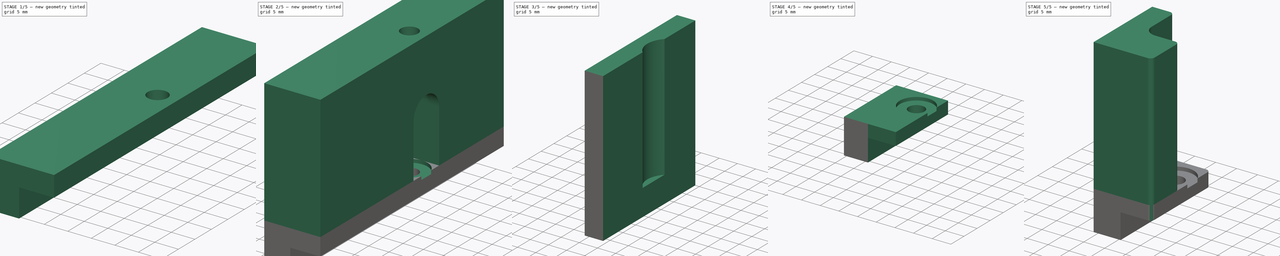
[diagram: build sequence overview — one tinted view per stage of 5, left to right]
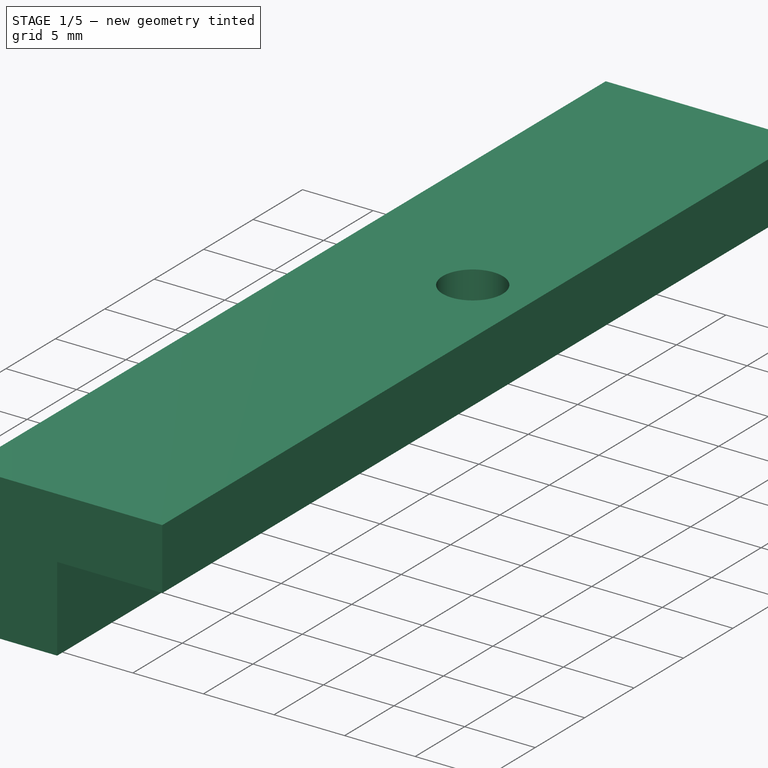
[diagram: stage 1 of 5 — iso view after this stage's code; geometry added in this stage tinted green]
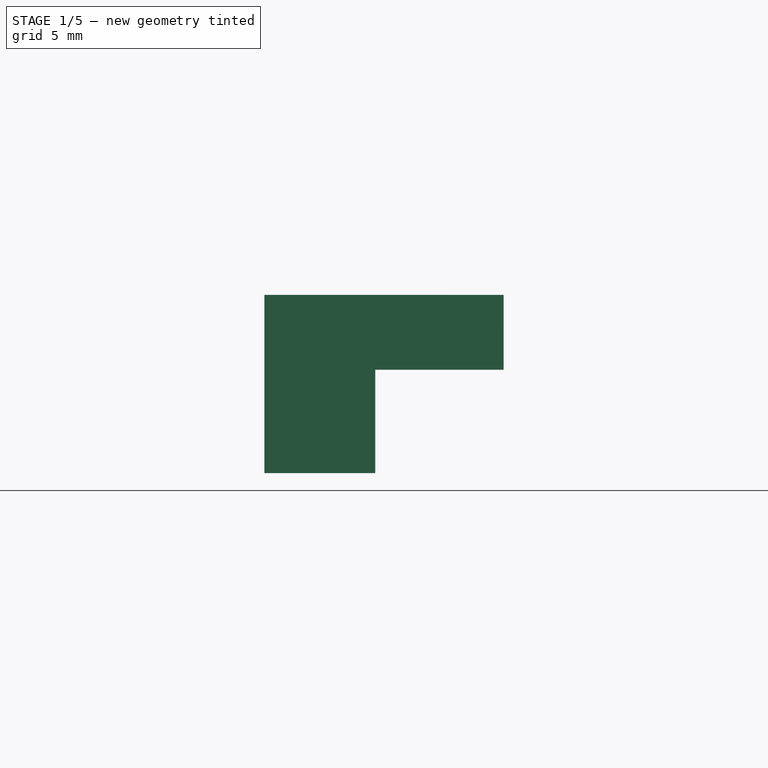
[diagram: stage 1 of 5 — front view after this stage's code; geometry added in this stage tinted green]
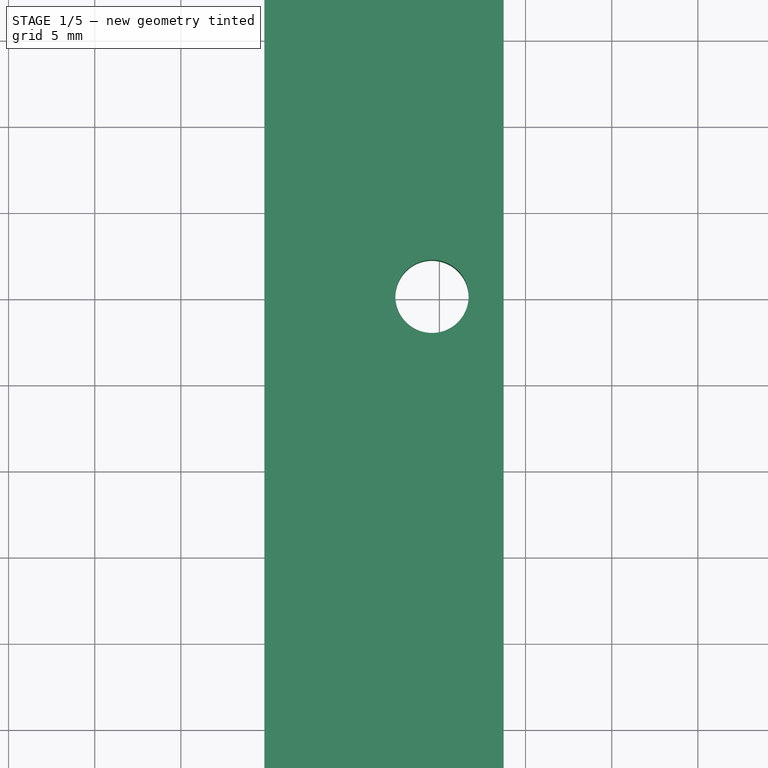
[diagram: stage 1 of 5 — top view after this stage's code; geometry added in this stage tinted green]
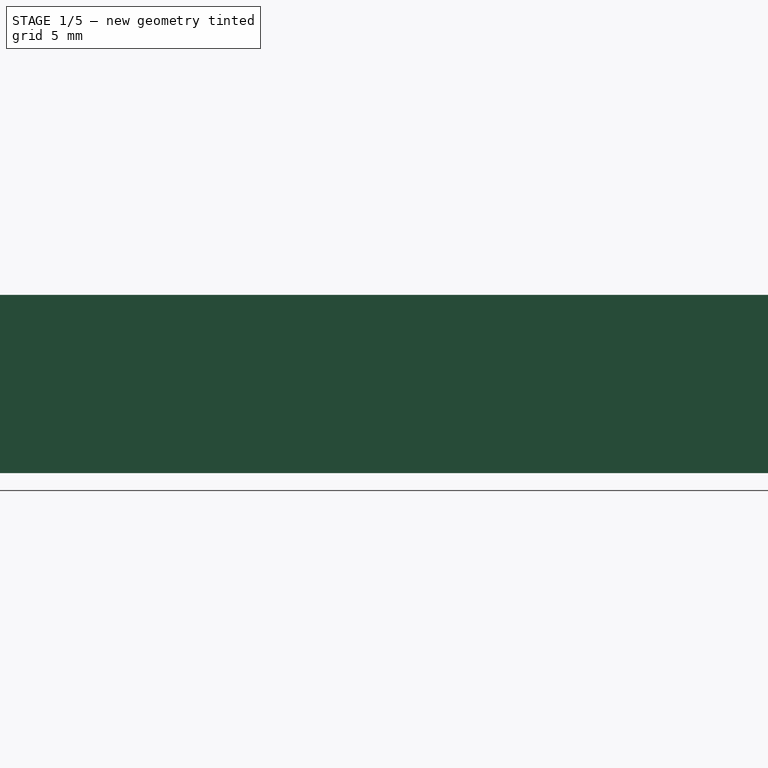
[diagram: stage 1 of 5 — right view after this stage's code; geometry added in this stage tinted green]
FCSTD DOCUMENT  (FreeCAD 0.21R33771 (Git))
Label: spacer-3
License: All rights reserved
LicenseURL: http://en.wikipedia.org/wiki/All_rights_reserved
objects: PartDesign::Pad×11, Sketcher::SketchObject×9, PartDesign::Fillet×4, PartDesign::SubShapeBinder×3, PartDesign::Body×3, PartDesign::Pocket×2, PartDesign::Plane×1
note: 50 computed .brp shape members not serialized (recipe doc carries the construction recipe); baked Part::Feature solids carry a one-line shape summary decoded from their .brp

FEATURE [Sketcher::SketchObject] Sketch
  FullyConstrained = true
  MapMode = 5
  Support = -> [XY_Plane]
  sketch-geometry (8):
    g0: LineSegment StartX=0 StartY=0 StartZ=0 EndX=0 EndY=5 EndZ=0
    g1: LineSegment StartX=0 StartY=5 StartZ=0 EndX=-0.43 EndY=5 EndZ=0
    g2: Circle CenterX=-0.43 CenterY=5 CenterZ=0 NormalX=0 NormalY=0 NormalZ=1 AngleXU=0 Radius=2.125
    g3: LineSegment StartX=3.725 StartY=-32.34 StartZ=0 EndX=3.725 EndY=32.34 EndZ=0
    g4: LineSegment StartX=3.725 StartY=32.34 StartZ=0 EndX=-3.725 EndY=32.34 EndZ=0
    g5: LineSegment StartX=-3.725 StartY=32.34 StartZ=0 EndX=-3.725 EndY=-32.34 EndZ=0
    g6: LineSegment StartX=-3.725 StartY=-32.34 StartZ=0 EndX=3.725 EndY=-32.34 EndZ=0
    g7: GeomPoint X=0 Y=0 Z=0
  constraints (20):
    c: Coincident(g0,g-1)
    c: PointOnObject(g0,g-2)
    c: Coincident(g1,g0)
    c: Horizontal(g1)
    c: Distance(g0) = 5
    c: Distance(g1) = 0.43
    c: Coincident(g2,g1)
    c: Diameter(g2) = 4.25
    c: Coincident(g3,g4)
    c: Coincident(g4,g5)
    c: Coincident(g5,g6)
    c: Coincident(g6,g3)
    c: Horizontal(g4)
    c: Horizontal(g6)
    c: Vertical(g3)
    c: Vertical(g5)
    c: Symmetric(g4,g3,g7)
    c: Coincident(g7,g0)
    c: Distance(g6) = 7.45
    c: Distance(g3) = 64.68
FEATURE [PartDesign::Pad] Pad
  Direction = (0,0,1)
  Length = 4.35
  Length2 = 10
  Profile = -> Sketch
  ReferenceAxis = -> Sketch [N_Axis]
  Type = 0
FEATURE [PartDesign::Pad] Pad001
  BaseFeature = -> Pad
  Direction = (-1,0,0)
  Length = 6.43
  Length2 = 10
  Profile = -> Pad [Face3]
  Type = 0
FEATURE [PartDesign::Pad] Pad002
  BaseFeature = -> Pad001
  Direction = (0,0,-1)
  Length = 6
  Length2 = 10
  Profile = -> Pad001 [Face8]
  Type = 0
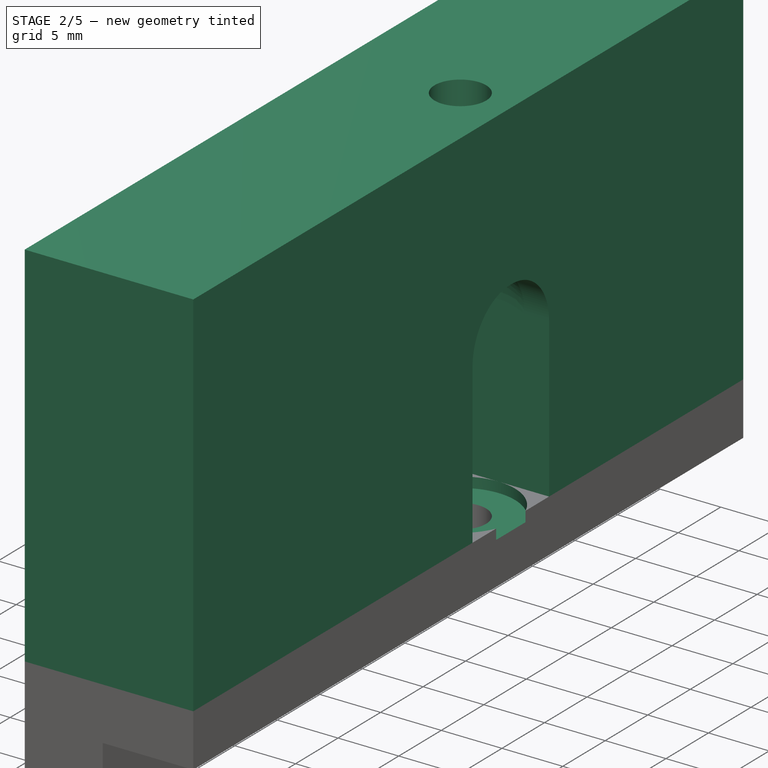
[diagram: stage 2 of 5 — iso view after this stage's code; geometry added in this stage tinted green]
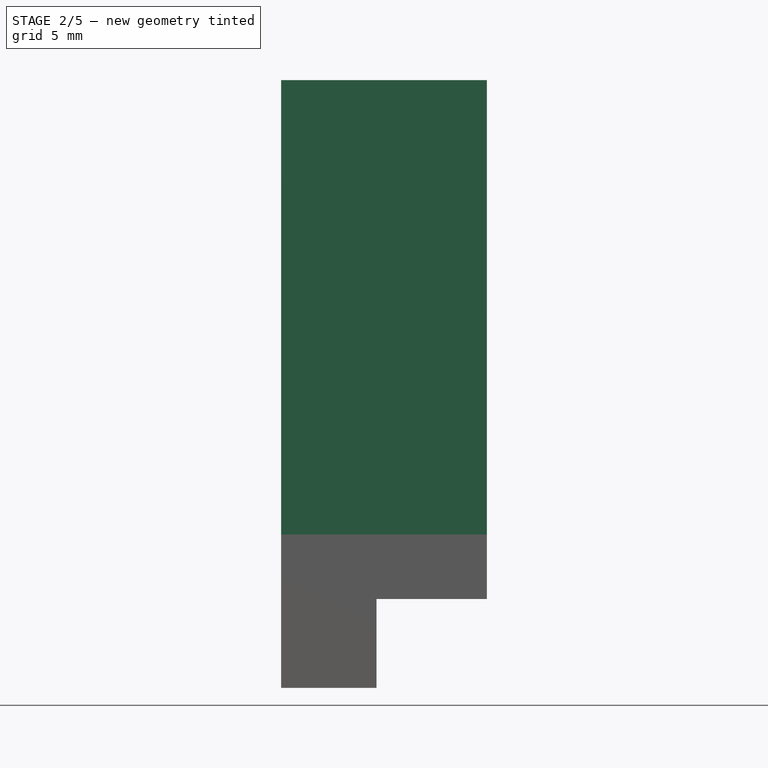
[diagram: stage 2 of 5 — front view after this stage's code; geometry added in this stage tinted green]
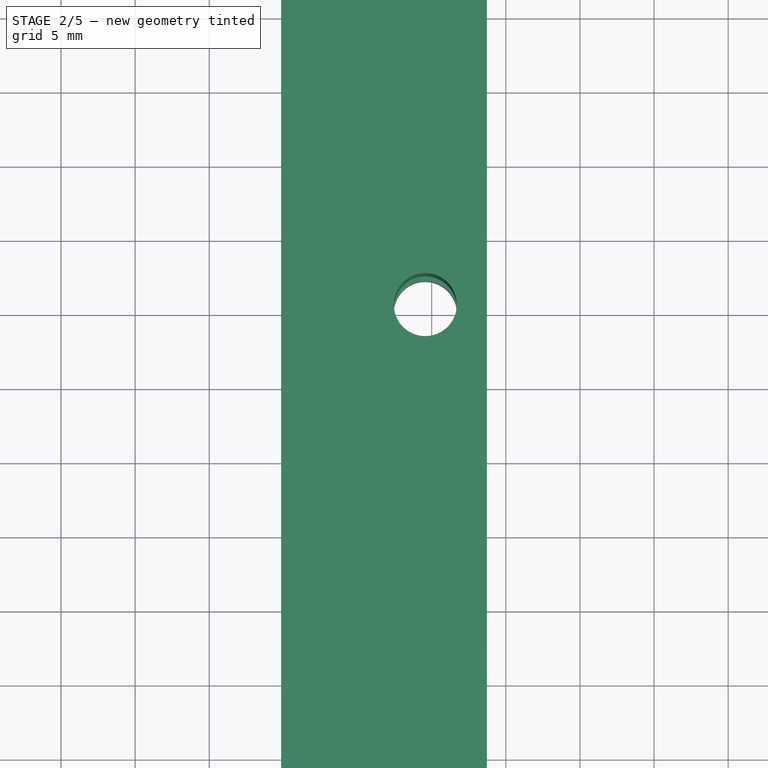
[diagram: stage 2 of 5 — top view after this stage's code; geometry added in this stage tinted green]
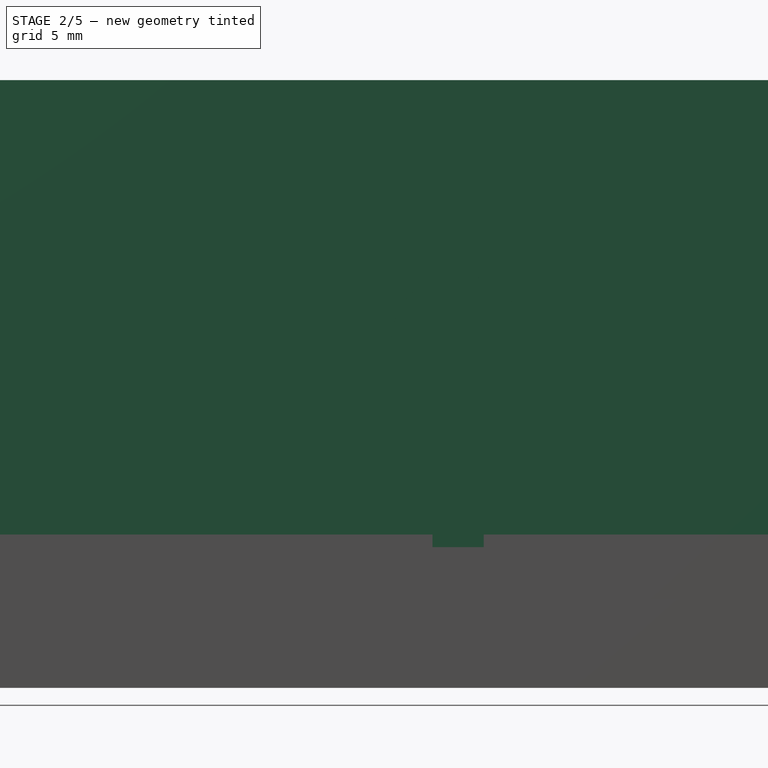
[diagram: stage 2 of 5 — right view after this stage's code; geometry added in this stage tinted green]
FEATURE [Sketcher::SketchObject] Sketch001
  ExternalGeometry = -> [Pad002]
  FullyConstrained = true
  MapMode = 5
  Placement = pos=(0,0,4.35) rot=(0,0,1;0rad)
  Support = -> [Pad002]
  sketch-geometry (6):
    g0: ArcOfCircle CenterX=-0.43 CenterY=5 CenterZ=0 NormalX=0 NormalY=0 NormalZ=1 AngleXU=0 Radius=4.5 StartAngle=3.71715 EndAngle=5.88906
    g1: ArcOfCircle CenterX=-0.43 CenterY=5 CenterZ=0 NormalX=0 NormalY=0 NormalZ=1 AngleXU=0 Radius=4.5 StartAngle=0.394124 EndAngle=2.56603
    g2: LineSegment StartX=-4.205 StartY=7.44936 StartZ=0 EndX=-4.205 EndY=2.55064 EndZ=0
    g3: LineSegment StartX=-2.555 StartY=5 StartZ=0 EndX=-4.205 EndY=5 EndZ=0
    g4: LineSegment StartX=3.725 StartY=6.728 StartZ=0 EndX=3.725 EndY=3.272 EndZ=0
    g5: LineSegment StartX=1.695 StartY=5 StartZ=0 EndX=3.725 EndY=5 EndZ=0
  constraints (20):
    c: Coincident(g0,g-3)
    c: Coincident(g1,g0)
    c: Diameter(g1) = 9
    c: Equal(g1,g0)
    c: Coincident(g2,g1)
    c: Coincident(g2,g0)
    c: Vertical(g2)
    c: PointOnObject(g3,g-3)
    c: PointOnObject(g3,g2)
    c: Horizontal(g3)
    c: Horizontal(g3,g0)
    c: Distance(g3) = 1.65
    c: PointOnObject(g0,g-4)
    c: PointOnObject(g1,g-4)
    c: Coincident(g4,g1)
    c: Coincident(g4,g0)
    c: PointOnObject(g5,g-3)
    c: PointOnObject(g5,g4)
    c: Horizontal(g5)
    c: Horizontal(g0,g5)
FEATURE [PartDesign::Pocket] Pocket
  BaseFeature = -> Pad002
  Direction = (0,0,-1)
  Length = 0.85
  Length2 = 5
  Profile = -> Sketch001
  ReferenceAxis = -> Sketch001 [N_Axis]
  Type = 0
FEATURE [Sketcher::SketchObject] Sketch002
  ExternalGeometry = -> [Pocket]
  FullyConstrained = true
  MapMode = 5
  Placement = pos=(0,0,4.35) rot=(0,0,1;0rad)
  Support = -> [Pocket]
  sketch-geometry (10):
    g0: LineSegment StartX=-10.155 StartY=-32.34 StartZ=0 EndX=-10.155 EndY=32.34 EndZ=0
    g1: LineSegment StartX=-10.155 StartY=32.34 StartZ=0 EndX=3.725 EndY=32.34 EndZ=0
    g2: LineSegment StartX=3.725 StartY=32.34 StartZ=0 EndX=3.725 EndY=9.5 EndZ=0
    g3: LineSegment StartX=3.725 StartY=9.5 StartZ=0 EndX=-4.205 EndY=9.5 EndZ=0
    g4: LineSegment StartX=-4.205 StartY=9.5 StartZ=0 EndX=-4.205 EndY=0.5 EndZ=0
    g5: LineSegment StartX=-4.205 StartY=0.5 StartZ=0 EndX=3.725 EndY=0.5 EndZ=0
    g6: LineSegment StartX=3.725 StartY=0.5 StartZ=0 EndX=3.725 EndY=-32.34 EndZ=0
    g7: GeomPoint X=-0.43 Y=0.5 Z=0
    g8: GeomPoint X=-0.43 Y=9.5 Z=0
    g9: LineSegment StartX=3.725 StartY=-32.34 StartZ=0 EndX=-10.155 EndY=-32.34 EndZ=0
  constraints (24):
    c: Coincident(g0,g-6)
    c: Coincident(g0,g-9)
    c: Coincident(g1,g0)
    c: Coincident(g1,g-7)
    c: Coincident(g2,g1)
    c: Vertical(g2)
    c: Coincident(g3,g2)
    c: Horizontal(g3)
    c: Coincident(g4,g3)
    c: Vertical(g4)
    c: Coincident(g5,g4)
    c: Horizontal(g5)
    c: Coincident(g6,g5)
    c: Coincident(g6,g-8)
    c: Vertical(g6)
    c: Vertical(g3,g-5)
    c: PointOnObject(g7,g5)
    c: PointOnObject(g8,g3)
    c: PointOnObject(g8,g-4)
    c: PointOnObject(g7,g-3)
    c: Vertical(g7,g-4)
    c: Vertical(g8,g-4)
    c: Coincident(g9,g6)
    c: Coincident(g9,g0)
FEATURE [PartDesign::Pad] Pad003
  BaseFeature = -> Pocket
  Direction = (0,0,1)
  Length = 17.5
  Length2 = 10
  Profile = -> Sketch002
  ReferenceAxis = -> Sketch002 [N_Axis]
  Type = 0
FEATURE [Sketcher::SketchObject] Sketch003
  ExternalGeometry = -> [Pad003]
  FullyConstrained = true
  MapMode = 5
  Placement = pos=(0,0,21.85) rot=(0,0,1;0rad)
  Support = -> [Pad003]
  sketch-geometry (5):
    g0: LineSegment StartX=-10.155 StartY=-32.34 StartZ=0 EndX=-10.155 EndY=32.34 EndZ=0
    g1: LineSegment StartX=-10.155 StartY=32.34 StartZ=0 EndX=3.725 EndY=32.34 EndZ=0
    g2: LineSegment StartX=3.725 StartY=32.34 StartZ=0 EndX=3.725 EndY=-32.34 EndZ=0
    g3: LineSegment StartX=3.725 StartY=-32.34 StartZ=0 EndX=-10.155 EndY=-32.34 EndZ=0
    g4: Circle CenterX=-0.43 CenterY=5 CenterZ=0 NormalX=0 NormalY=0 NormalZ=1 AngleXU=0 Radius=2.125
  constraints (10):
    c: Coincident(g0,g-5)
    c: Coincident(g0,g-4)
    c: Coincident(g1,g0)
    c: Coincident(g1,g-4)
    c: Coincident(g2,g1)
    c: Coincident(g2,g-5)
    c: Coincident(g3,g2)
    c: Coincident(g3,g0)
    c: Coincident(g4,g-3)
    c: Equal(g-3,g4)
FEATURE [PartDesign::Pad] Pad004
  BaseFeature = -> Pad003
  Direction = (0,0,1)
  Length = 13.15
  Length2 = 10
  Profile = -> Sketch003
  ReferenceAxis = -> Sketch003 [N_Axis]
  Type = 0
FEATURE [PartDesign::Fillet] Fillet
  Base = -> Pad004 [Edge64,Edge51]
  BaseFeature = -> Pad004
  Radius = 4.4
  SupportTransform = false
  UseAllEdges = false
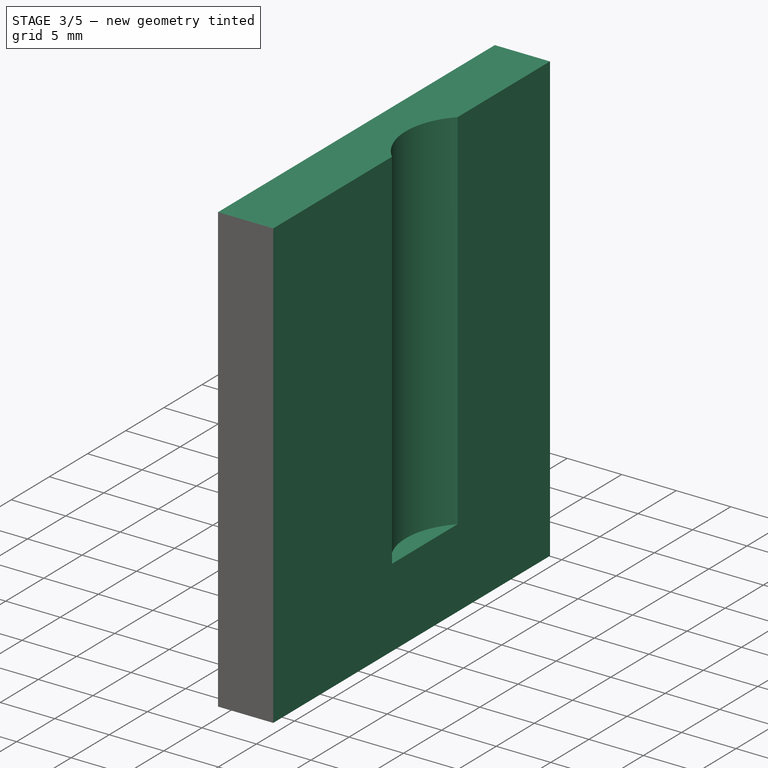
[diagram: stage 3 of 5 — iso view after this stage's code; geometry added in this stage tinted green]
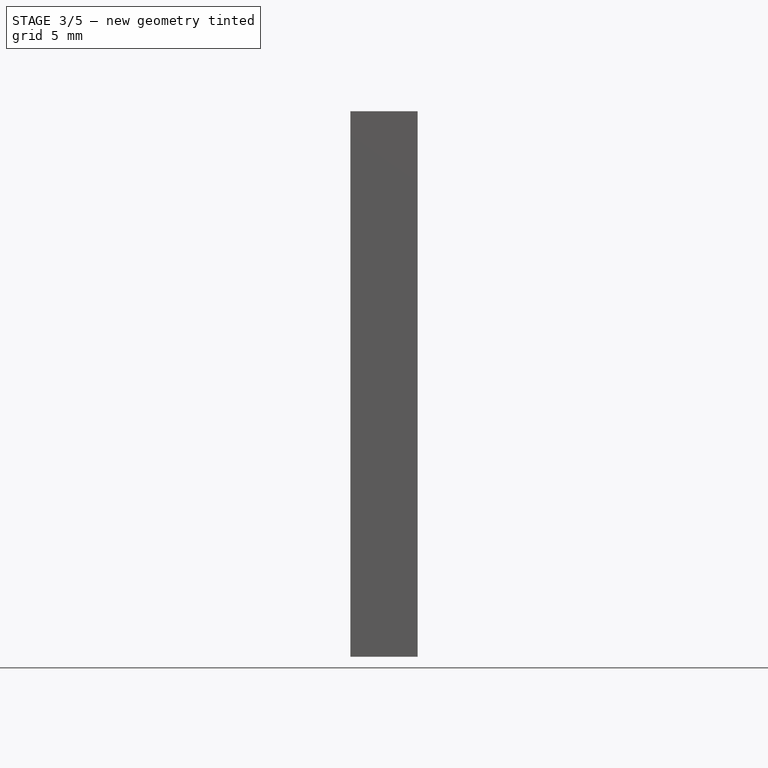
[diagram: stage 3 of 5 — front view after this stage's code; geometry added in this stage tinted green]
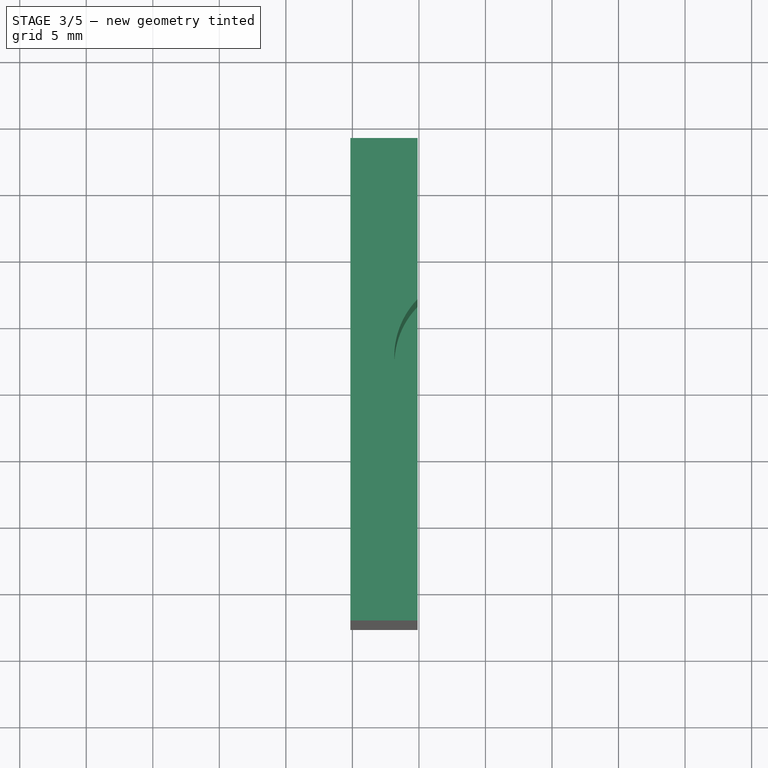
[diagram: stage 3 of 5 — top view after this stage's code; geometry added in this stage tinted green]
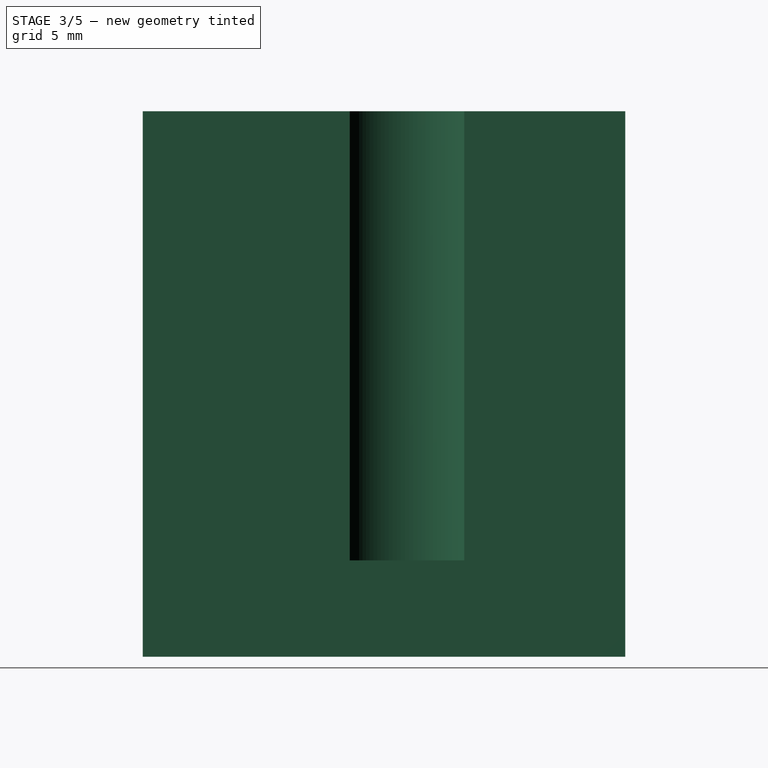
[diagram: stage 3 of 5 — right view after this stage's code; geometry added in this stage tinted green]
FEATURE [PartDesign::SubShapeBinder] Binder001
  BindCopyOnChange = 0
  BindMode = 0
  ClaimChildren = false
  Context = -> Body001 [Binder001.]
  Fuse = false
  MakeFace = true
  OffsetFill = false
  OffsetIntersection = false
  OffsetJoinType = 0
  OffsetOpenResult = false
  PartialLoad = false
  Relative = true
  Support = -> [Body[Pad004.Edge71]]
  _Version = 2
FEATURE [PartDesign::Plane] DatumPlane
  AttachmentOffset = pos=(0,0,0) rot=(-1,0,0;1.5708rad)
  Length = 107.282
  MapMode = 7
  Placement = pos=(-3.725,32.34,-6) rot=(0,0,1;1.5708rad)
  ResizeMode = 0
  Support = -> [Binder001]
  Width = 63.6821
FEATURE [Sketcher::SketchObject] Sketch004
  ExternalGeometry = -> [Binder001]
  FullyConstrained = true
  MapMode = 5
  Placement = pos=(-3.725,32.34,-6) rot=(0,0,1;1.5708rad)
  Support = -> [DatumPlane]
  sketch-geometry (4):
    g0: LineSegment StartX=0 StartY=6.43 StartZ=0 EndX=36.26 EndY=6.43 EndZ=0
    g1: LineSegment StartX=36.26 StartY=6.43 StartZ=0 EndX=36.26 EndY=1.37 EndZ=0
    g2: LineSegment StartX=36.26 StartY=1.37 StartZ=0 EndX=0 EndY=1.37 EndZ=0
    g3: LineSegment StartX=0 StartY=1.37 StartZ=0 EndX=0 EndY=6.43 EndZ=0
  constraints (11):
    c: Coincident(g0,g1)
    c: Coincident(g1,g2)
    c: Coincident(g2,g3)
    c: Coincident(g3,g0)
    c: Horizontal(g0)
    c: Horizontal(g2)
    c: Vertical(g1)
    c: Vertical(g3)
    c: Coincident(g0,g-3)
    c: Distance(g3) = 5.06
    c: Distance(g0) = 36.26
FEATURE [PartDesign::Pad] Pad005
  Direction = (0,0,1)
  Length = 7.25
  Length2 = 10
  Placement = pos=(-3.725,32.34,-6) rot=(0,0,1;1.5708rad)
  Profile = -> Sketch004
  ReferenceAxis = -> Sketch004 [N_Axis]
  Type = 0
FEATURE [Sketcher::SketchObject] Sketch005
  ExternalGeometry = -> [Pad005]
  FullyConstrained = true
  MapMode = 5
  Placement = pos=(-3.725,32.34,1.25) rot=(0,0,1;1.5708rad)
  Support = -> [Pad005]
  sketch-geometry (10):
    g0: LineSegment StartX=0 StartY=1.37 StartZ=0 EndX=0 EndY=-0.03 EndZ=0
    g1: LineSegment StartX=0 StartY=-0.03 StartZ=0 EndX=19.86 EndY=-0.03 EndZ=0
    g2: ArcOfCircle CenterX=19.86 CenterY=-3.03786 CenterZ=0 NormalX=0 NormalY=0 NormalZ=1 AngleXU=0 Radius=6.15786 StartAngle=0.797784 EndAngle=2.34381
    g3: LineSegment StartX=19.86 StartY=-0.03 StartZ=0 EndX=19.86 EndY=3.12 EndZ=0
    g4: LineSegment StartX=15.56 StartY=1.37 StartZ=0 EndX=24.16 EndY=1.37 EndZ=0
    g5: LineSegment StartX=15.56 StartY=1.37 StartZ=0 EndX=0 EndY=1.37 EndZ=0
    g6: LineSegment StartX=0 StartY=1.37 StartZ=0 EndX=0 EndY=6.43 EndZ=0
    g7: LineSegment StartX=0 StartY=6.43 StartZ=0 EndX=36.26 EndY=6.43 EndZ=0
    g8: LineSegment StartX=36.26 StartY=6.43 StartZ=0 EndX=36.26 EndY=1.37 EndZ=0
    g9: LineSegment StartX=36.26 StartY=1.37 StartZ=0 EndX=24.16 EndY=1.37 EndZ=0
  constraints (26):
    c: Vertical(g0)
    c: Distance(g0) = 1.4
    c: Coincident(g0,g-3)
    c: Coincident(g1,g0)
    c: Horizontal(g1)
    c: Distance(g1) = 19.86
    c: Vertical(g1,g2)
    c: PointOnObject(g2,g-3)
    c: PointOnObject(g2,g-3)
    c: Coincident(g3,g1)
    c: PointOnObject(g3,g2)
    c: Vertical(g3)
    c: Distance(g3) = 3.15
    c: Coincident(g4,g2)
    c: Coincident(g4,g2)
    c: Distance(g4) = 8.6
    c: Coincident(g5,g2)
    c: Coincident(g5,g0)
    c: Coincident(g6,g5)
    c: Coincident(g6,g-4)
    c: Coincident(g7,g6)
    c: Coincident(g7,g-4)
    c: Coincident(g8,g7)
    c: Coincident(g8,g-3)
    c: Coincident(g9,g8)
    c: Coincident(g9,g2)
FEATURE [PartDesign::Pad] Pad006
  BaseFeature = -> Pad005
  Direction = (0,0,1)
  Length = 33.75
  Length2 = 10
  Placement = pos=(-3.725,32.34,-6) rot=(0,0,1;1.5708rad)
  Profile = -> Sketch005
  ReferenceAxis = -> Sketch005 [N_Axis]
  Type = 0
FEATURE [PartDesign::Fillet] Fillet001
  Base = -> Fillet [Edge68,Edge29,Edge24,Edge17,Edge5,Edge28]
  BaseFeature = -> Fillet
  Radius = 1
  SupportTransform = false
  UseAllEdges = false
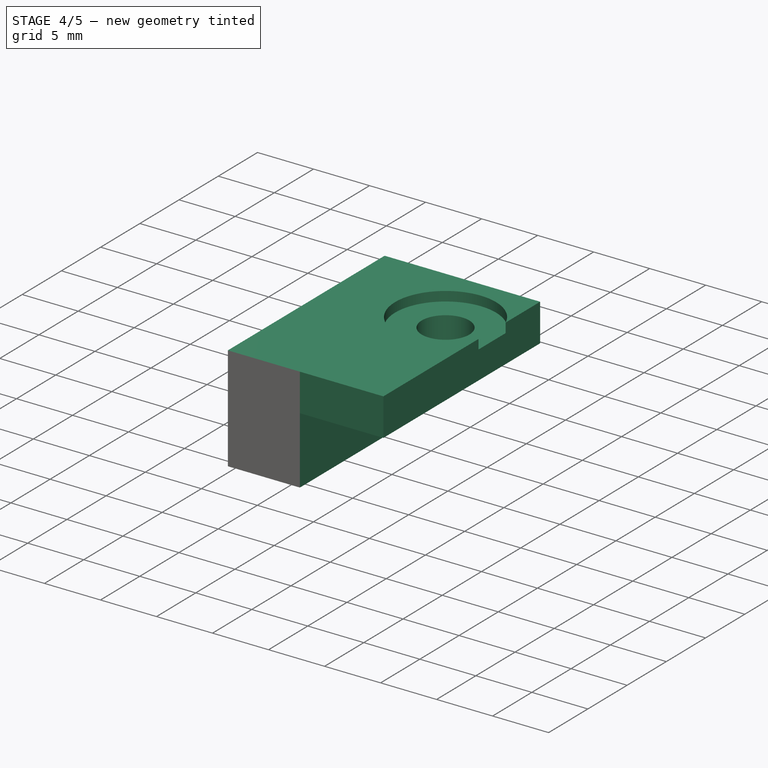
[diagram: stage 4 of 5 — iso view after this stage's code; geometry added in this stage tinted green]
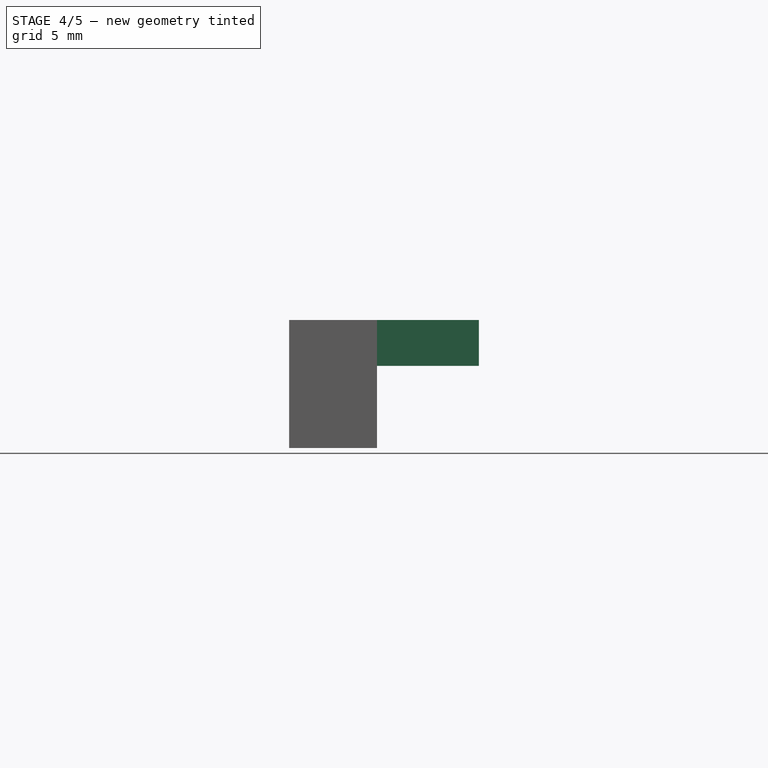
[diagram: stage 4 of 5 — front view after this stage's code; geometry added in this stage tinted green]
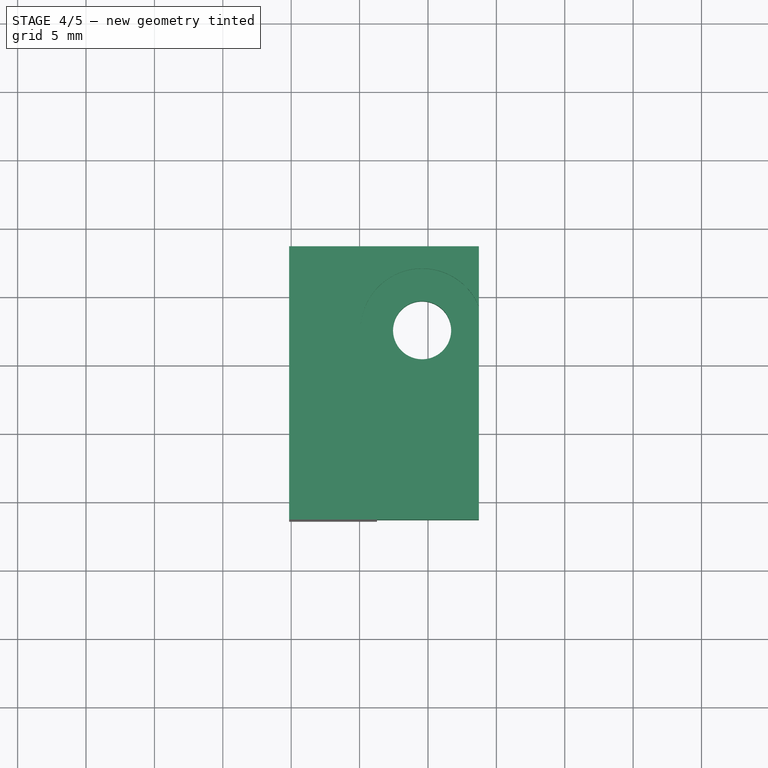
[diagram: stage 4 of 5 — top view after this stage's code; geometry added in this stage tinted green]
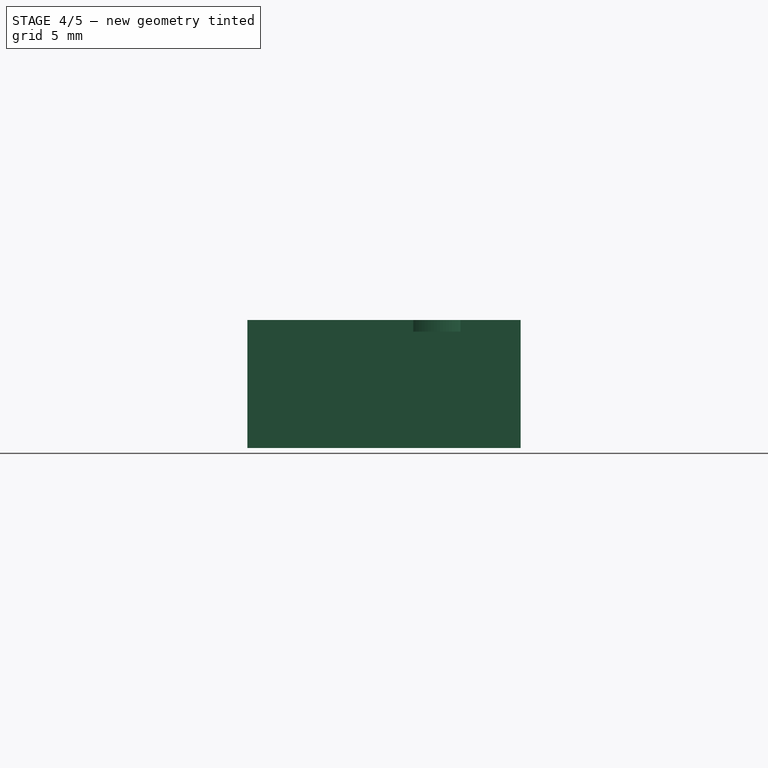
[diagram: stage 4 of 5 — right view after this stage's code; geometry added in this stage tinted green]
FEATURE [PartDesign::Body] Body001  label="Körper001"
  Group = -> [Binder001,DatumPlane,Sketch004,Pad005,Sketch005,Pad006]
  Origin = -> Origin001
  Tip = -> Pad006
FEATURE [PartDesign::SubShapeBinder] Binder
  BindCopyOnChange = 0
  BindMode = 0
  ClaimChildren = false
  Context = -> Body002 [Binder.]
  Fuse = false
  MakeFace = true
  OffsetFill = false
  OffsetIntersection = false
  OffsetJoinType = 0
  OffsetOpenResult = false
  PartialLoad = false
  Relative = true
  Support = -> [Body[Sketch.Edge5,Sketch.Edge1]]
  _Version = 2
FEATURE [PartDesign::SubShapeBinder] Binder002
  BindCopyOnChange = 0
  BindMode = 0
  ClaimChildren = false
  Context = -> Body002 [Binder002.]
  Fuse = false
  MakeFace = true
  OffsetFill = false
  OffsetIntersection = false
  OffsetJoinType = 0
  OffsetOpenResult = false
  PartialLoad = false
  Relative = true
  Support = -> [Body001[Pad006.Edge9]]
  _Version = 2
FEATURE [Sketcher::SketchObject] Sketch006
  ExternalGeometry = -> [Binder,Binder002]
  FullyConstrained = true
  MapMode = 5
  Support = -> [XY_Plane002]
  sketch-geometry (7):
    g0: LineSegment StartX=-0.43 StartY=5 StartZ=0 EndX=-0.43 EndY=82.46 EndZ=0
    g1: Circle CenterX=-0.43 CenterY=82.46 CenterZ=0 NormalX=0 NormalY=0 NormalZ=1 AngleXU=0 Radius=2.125
    g2: LineSegment StartX=3.725 StartY=68.6 StartZ=0 EndX=3.725 EndY=88.585 EndZ=0
    g3: LineSegment StartX=3.725 StartY=88.585 StartZ=0 EndX=-3.725 EndY=88.585 EndZ=0
    g4: LineSegment StartX=-0.43 StartY=84.585 StartZ=0 EndX=-0.43 EndY=88.585 EndZ=0
    g5: LineSegment StartX=3.725 StartY=68.6 StartZ=0 EndX=-3.725 EndY=68.6 EndZ=0
    g6: LineSegment StartX=-3.725 StartY=68.6 StartZ=0 EndX=-3.725 EndY=88.585 EndZ=0
  constraints (21):
    c: Coincident(g0,g-3)
    c: Vertical(g0)
    c: Distance(g0) = 77.46
    c: Coincident(g1,g0)
    c: Equal(g1,g-3)
    c: Coincident(g2,g3)
    c: Horizontal(g3)
    c: Vertical(g2)
    c: Vertical(g2,g-4)
    c: PointOnObject(g4,g1)
    c: PointOnObject(g4,g3)
    c: Vertical(g4)
    c: Vertical(g4,g1)
    c: Distance(g4) = 4
    c: Coincident(g5,g2)
    c: Horizontal(g5)
    c: Vertical(g-4,g5)
    c: Coincident(g6,g5)
    c: Coincident(g6,g3)
    c: Vertical(g6)
    c: Horizontal(g-5,g5)
FEATURE [PartDesign::Pad] Pad007
  Direction = (0,0,1)
  Length = 3.35
  Length2 = 10
  Profile = -> Sketch006
  ReferenceAxis = -> Sketch006 [N_Axis]
  Type = 0
FEATURE [PartDesign::Pad] Pad008
  BaseFeature = -> Pad007
  Direction = (-1,0,0)
  Length = 6.43
  Length2 = 10
  Profile = -> Pad007 [Face3]
  Type = 0
FEATURE [PartDesign::Pad] Pad009
  BaseFeature = -> Pad008
  Direction = (0,0,-1)
  Length = 6
  Length2 = 10
  Profile = -> Pad008 [Face8]
  Type = 0
FEATURE [Sketcher::SketchObject] Sketch007
  ExternalGeometry = -> [Pad009]
  FullyConstrained = true
  MapMode = 5
  Placement = pos=(0,0,3.35) rot=(0,0,1;0rad)
  Support = -> [Pad009]
  sketch-geometry (1):
    g0: Circle CenterX=-0.43 CenterY=82.46 CenterZ=0 NormalX=0 NormalY=0 NormalZ=1 AngleXU=0 Radius=4.5
  constraints (2):
    c: Coincident(g0,g-3)
    c: Diameter(g0) = 9
FEATURE [PartDesign::Pocket] Pocket001
  BaseFeature = -> Pad009
  Direction = (0,0,-1)
  Length = 0.85
  Length2 = 5
  Profile = -> Sketch007
  ReferenceAxis = -> Sketch007 [N_Axis]
  Type = 0
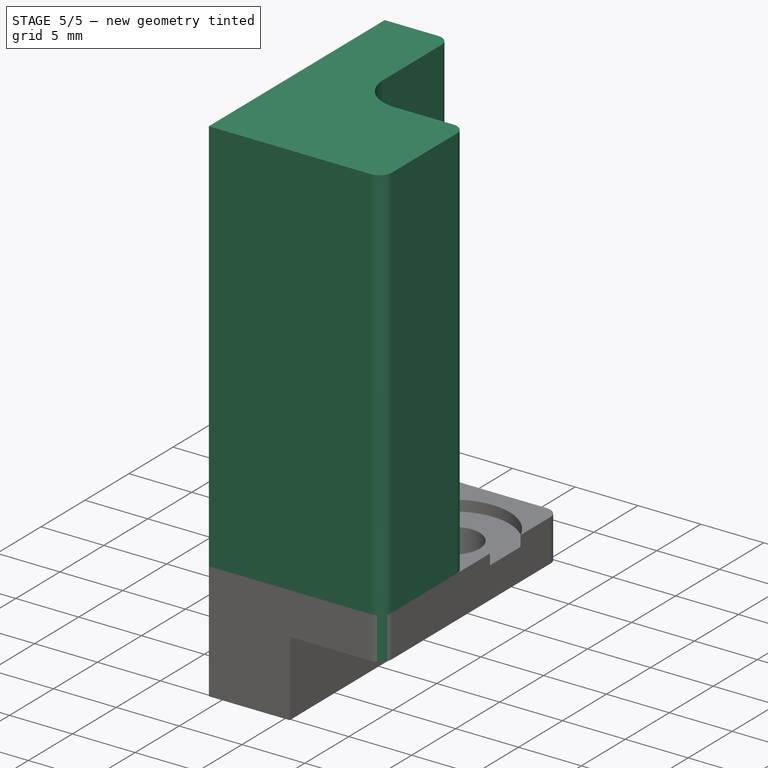
[diagram: stage 5 of 5 — iso view after this stage's code; geometry added in this stage tinted green]
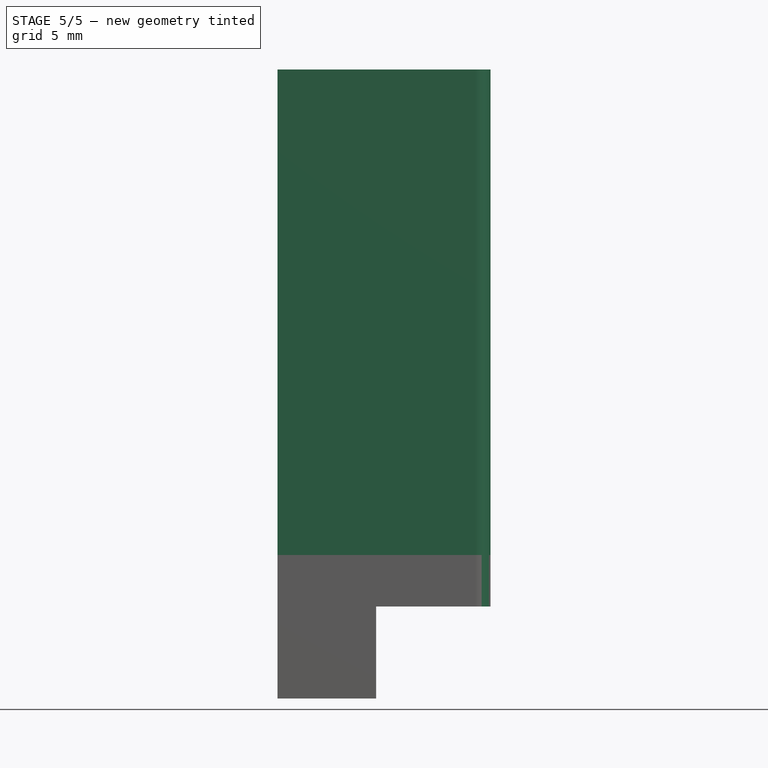
[diagram: stage 5 of 5 — front view after this stage's code; geometry added in this stage tinted green]
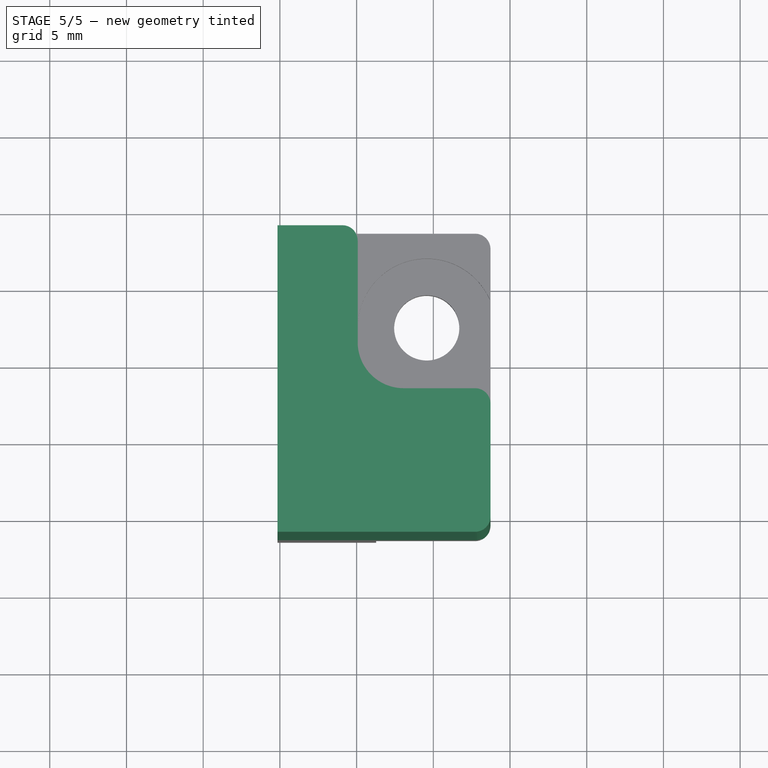
[diagram: stage 5 of 5 — top view after this stage's code; geometry added in this stage tinted green]
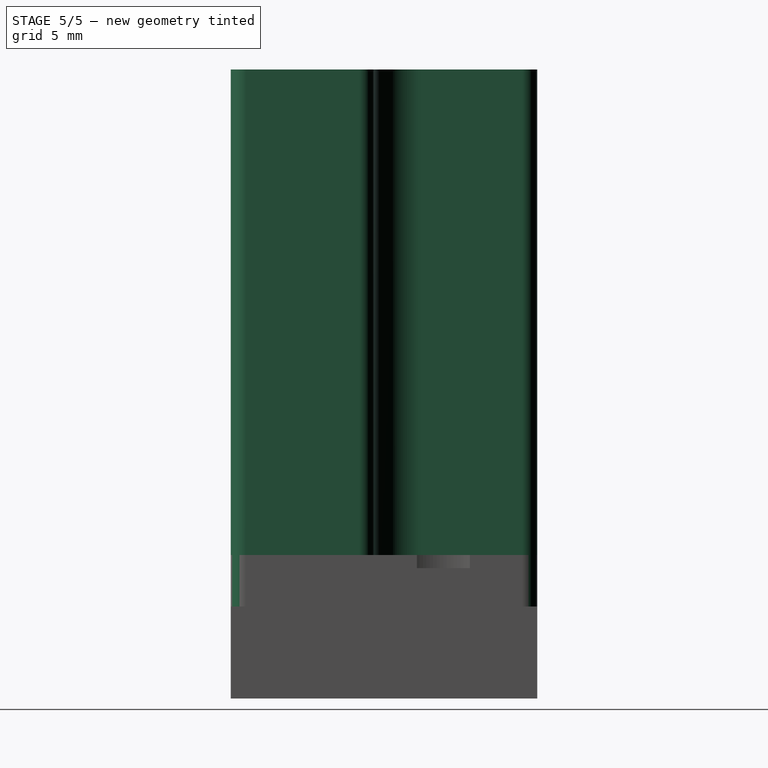
[diagram: stage 5 of 5 — right view after this stage's code; geometry added in this stage tinted green]
FEATURE [Sketcher::SketchObject] Sketch008
  ExternalGeometry = -> [Pocket001]
  FullyConstrained = true
  MapMode = 5
  Placement = pos=(0,0,3.35) rot=(0,0,1;0rad)
  Support = -> [Pocket001]
  sketch-geometry (6):
    g0: LineSegment StartX=-10.155 StartY=68.6 StartZ=0 EndX=3.725 EndY=68.6 EndZ=0
    g1: LineSegment StartX=-10.155 StartY=68.6 StartZ=0 EndX=-10.155 EndY=88.585 EndZ=0
    g2: LineSegment StartX=3.725 StartY=68.6 StartZ=0 EndX=3.725 EndY=77.96 EndZ=0
    g3: LineSegment StartX=3.725 StartY=77.96 StartZ=0 EndX=-4.93 EndY=77.96 EndZ=0
    g4: LineSegment StartX=-4.93 StartY=77.96 StartZ=0 EndX=-4.93 EndY=88.585 EndZ=0
    g5: LineSegment StartX=-10.155 StartY=88.585 StartZ=0 EndX=-4.93 EndY=88.585 EndZ=0
  constraints (15):
    c: Coincident(g0,g-3)
    c: Coincident(g0,g-4)
    c: Coincident(g1,g0)
    c: Coincident(g2,g0)
    c: Coincident(g3,g2)
    c: Vertical(g2)
    c: Tangent(g3,g-8)
    c: Horizontal(g3)
    c: Coincident(g4,g3)
    c: Vertical(g4)
    c: Tangent(g-7,g4)
    c: Coincident(g5,g1)
    c: Horizontal(g5)
    c: Coincident(g5,g4)
    c: Coincident(g-9,g1)
FEATURE [PartDesign::Pad] Pad010
  BaseFeature = -> Pocket001
  Direction = (0,0,1)
  Length = 31.65
  Length2 = 10
  Profile = -> Sketch008
  ReferenceAxis = -> Sketch008 [N_Axis]
  Type = 0
FEATURE [PartDesign::Body] Body  label="Körper"
  Group = -> [Sketch,Pad,Pad001,Pad002,Sketch001,Pocket,Sketch002,Pad003,Sketch003,Pad004,Fillet,Fillet001]
  Origin = -> Origin
  Tip = -> Fillet001
FEATURE [PartDesign::Fillet] Fillet002
  Base = -> Pad010 [Edge24,Edge9,Edge2,Edge59,Edge25]
  BaseFeature = -> Pad010
  Radius = 1
  SupportTransform = false
  UseAllEdges = false
FEATURE [PartDesign::Fillet] Fillet003
  Base = -> Fillet002 [Edge56]
  BaseFeature = -> Fillet002
  Radius = 3
  SupportTransform = false
  UseAllEdges = false
FEATURE [PartDesign::Body] Body002  label="Körper002"
  Group = -> [Binder,Binder002,Sketch006,Pad007,Pad008,Pad009,Sketch007,Pocket001,Sketch008,Pad010,Fillet002,Fillet003]
  Origin = -> Origin002
  Tip = -> Fillet003
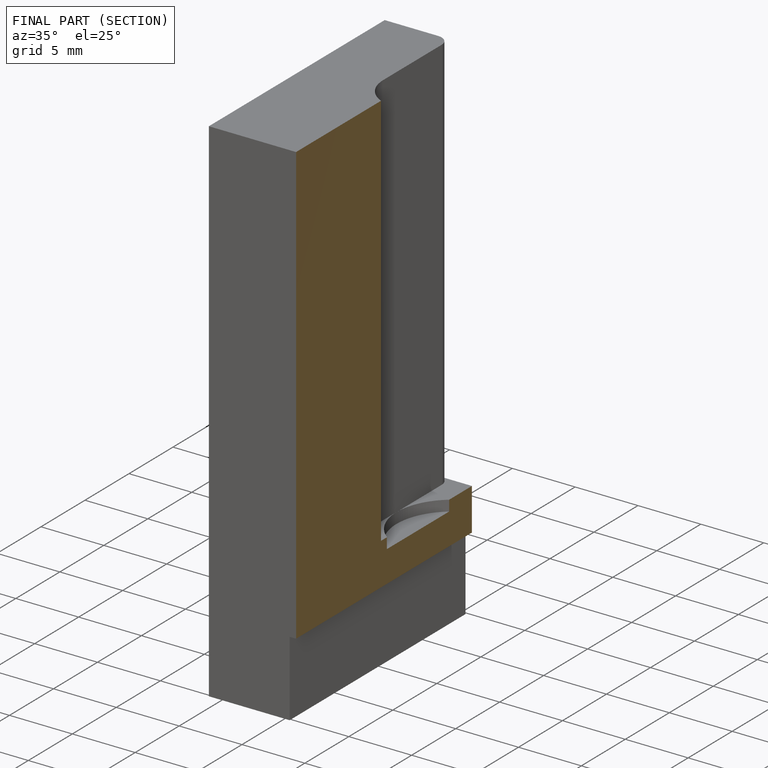
[diagram: finished part — half-section view (interior)]
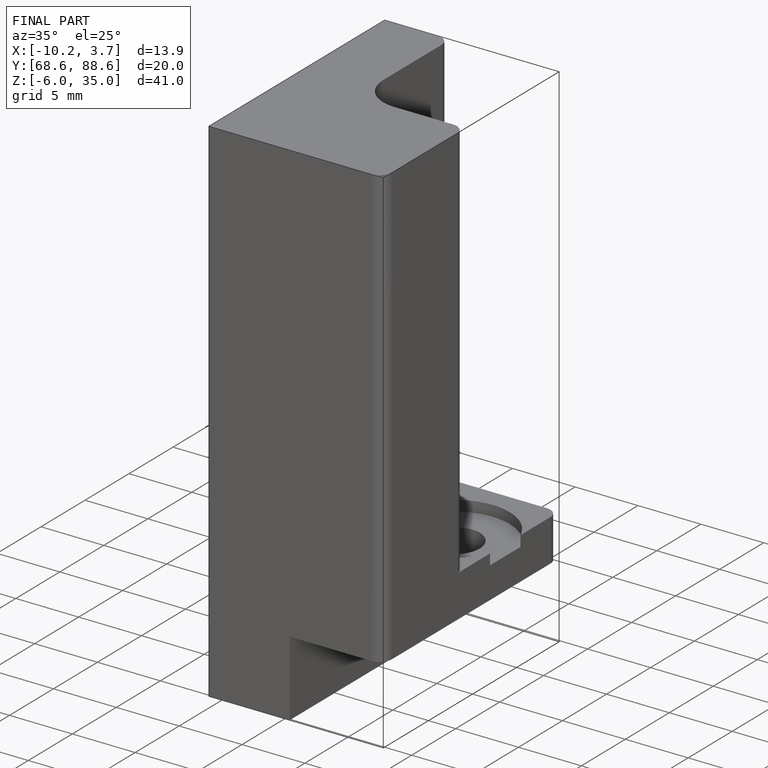
[diagram: finished part — iso view with bounding-box wireframe]
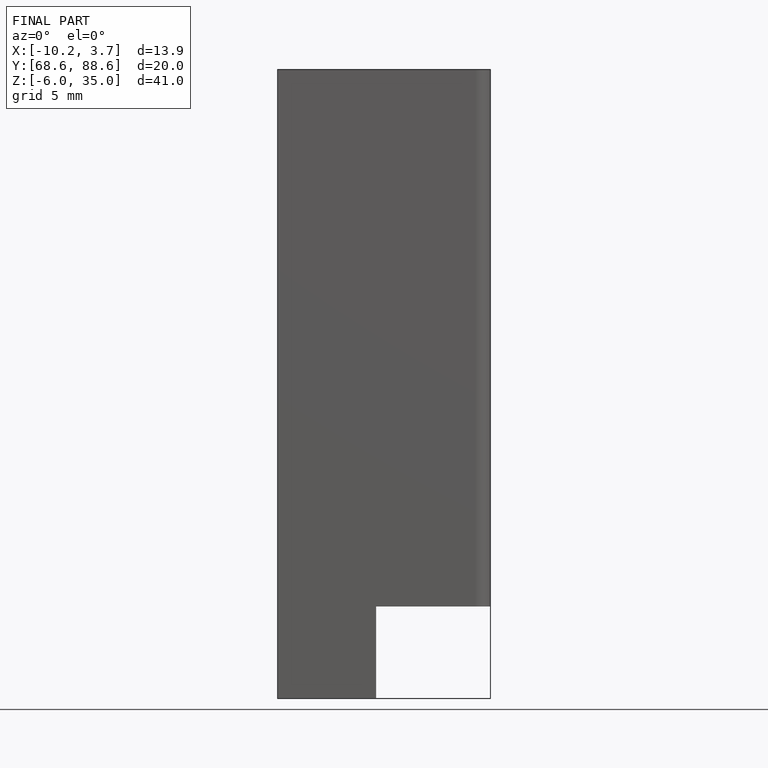
[diagram: finished part — front view with bounding-box wireframe]
